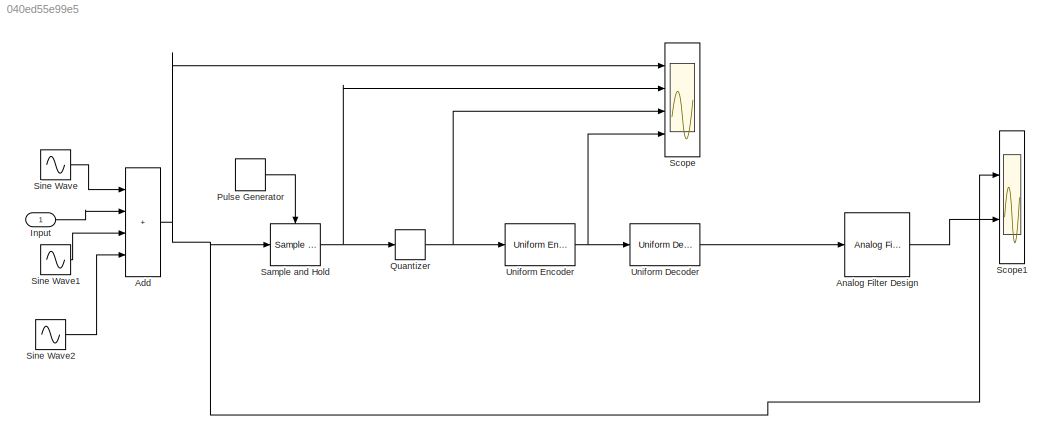
MODEL slx_040ed55e99e5
KIND model
CONFIG AbsTol = auto
CONFIG EnableMultiTasking = off
CONFIG FixedStep = auto
CONFIG MaxStep = auto
CONFIG MinStep = auto
CONFIG RelTol = 1e-3
CONFIG SampleTimeConstraint = Unconstrained
CONFIG SolverName = VariableStepAuto
CONFIG StartTime = 0.0
CONFIG StopTime = 20
BLOCK [Sum] Add
  IconShape = rectangular
  Inputs = ++++
  Ports = [4, 1]
BLOCK [Reference] Analog Filter Design  REF=dsparch4/Analog
Filter Design
  Ports = [1, 1]
  SourceBlock = dsparch4/Analog\nFilter Design
  SourceProductBaseCode = DS
  SourceType = Analog Filter Design
BLOCK [Inport] Input
BLOCK [DiscretePulseGenerator] Pulse Generator
  Period = 0.1
  Ports = [0, 1]
  PulseType = Time based
  PulseWidth = 50
BLOCK [Quantizer] Quantizer
BLOCK [Reference] Sample and Hold  REF=dspsigops/Sample
and Hold
  Ports = [1, 1, 0, 1]
  SourceBlock = dspsigops/Sample\nand Hold
  SourceProductBaseCode = DS
  SourceType = Sample and Hold
BLOCK [Scope] Scope
  Floating = off
  NumInputPorts = 4
  Ports = [4]
  ScopeSpecificationString = Simulink.scopes.TimeScopeBlockCfg('CurrentConfiguration', extmgr.ConfigurationSet(extmgr.Configuration('Core','General UI',true),extmgr.Configuration('Core','Source UI',true),extmgr.Configuration('Sources','WiredSimulink',true),extmgr.Configuration('Visuals','Time Domain',true,'SerializedDisplays',{struct('MinYLimReal','-5.96788','MaxYLimReal','5.68929','YLabelReal','','MinYLimMag','0.00000','MaxY...<+3397ch>
BLOCK [Scope] Scope1
  Floating = off
  NumInputPorts = 2
  Ports = [2]
  ScopeSpecificationString = Simulink.scopes.TimeScopeBlockCfg('CurrentConfiguration', extmgr.ConfigurationSet(extmgr.Configuration('Core','General UI',true),extmgr.Configuration('Core','Source UI',true),extmgr.Configuration('Sources','WiredSimulink',true,'DataLoggingVariableName','ScopeData1'),extmgr.Configuration('Visuals','Time Domain',true,'SerializedDisplays',{struct('MinYLimReal','-5.58283','MaxYLimReal','5.76086','YLab...<+1486ch>
BLOCK [Sin] Sine Wave
  Frequency = 6
  Ports = [0, 1]
  SampleTime = 1/10000
BLOCK [Sin] Sine Wave1
  Amplitude = 2.5
  Frequency = 4
  Phase = pi*0.5
  Ports = [0, 1]
  SampleTime = 1/10000
BLOCK [Sin] Sine Wave2
  Amplitude = sqrt(3)
  Frequency = 3
  Ports = [0, 1]
  SampleTime = 1/10000
BLOCK [Reference] Uniform Decoder  REF=dspquant2/Uniform
Decoder
  Ports = [1, 1]
  SourceBlock = dspquant2/Uniform\nDecoder
  SourceProductBaseCode = DS
  SourceType = Uniform Decoder
BLOCK [Reference] Uniform Encoder  REF=dspquant2/Uniform
Encoder
  Ports = [1, 1]
  SourceBlock = dspquant2/Uniform\nEncoder
  SourceProductBaseCode = DS
  SourceType = Uniform Encoder
NET Add:1 -> Sample and Hold:1, Scope1:1, Scope:1
LINE Analog Filter Design:1 -> Scope1:2
LINE Input:1 -> Add:2
LINE Pulse Generator:1 -> Sample and Hold:trigger
NET Quantizer:1 -> Scope:3, Uniform Encoder:1
NET Sample and Hold:1 -> Quantizer:1, Scope:2
LINE Sine Wave1:1 -> Add:3
LINE Sine Wave2:1 -> Add:4
LINE Sine Wave:1 -> Add:1
LINE Uniform Decoder:1 -> Analog Filter Design:1
NET Uniform Encoder:1 -> Scope:4, Uniform Decoder:1
note: NET lines group one-source signal fan-out (src -> all destinations, sorted); 1:1 wires keep LINE
